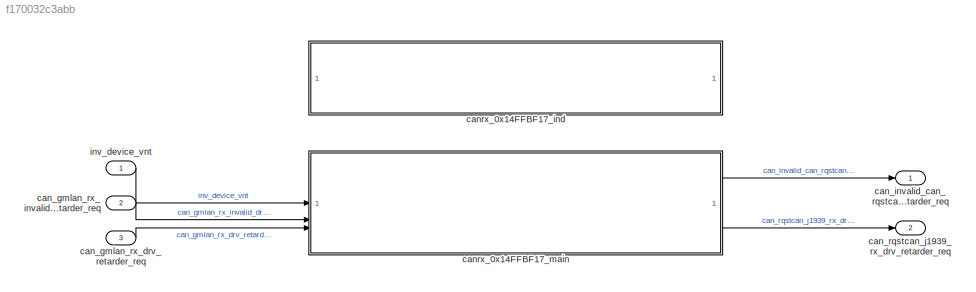
MODEL slx_f170032c3abb
KIND model
CONFIG AbsTol = auto
CONFIG EnableMultiTasking = off
CONFIG FixedStep = auto
CONFIG MaxStep = auto
CONFIG MinStep = auto
CONFIG RelTol = 1e-3
CONFIG SampleTimeConstraint = Unconstrained
CONFIG SolverName = VariableStepAuto
CONFIG StartTime = 0.0
CONFIG StopTime = 10.0
BLOCK [Inport] can_gmlan_rx_drv_retarder_req
  Port = 3
BLOCK [Inport] can_gmlan_rx_invalid_drv_retarder_req
  Port = 2
BLOCK [Outport] can_invalid_can_rqstcan_j1939_rx_drv_retarder_req
BLOCK [Outport] can_rqstcan_j1939_rx_drv_retarder_req
  Port = 2
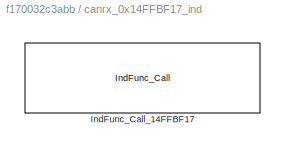
BLOCK [SubSystem] canrx_0x14FFBF17_ind
BLOCK [Reference] canrx_0x14FFBF17_ind/IndFunc_Call_14FFBF17  REF=user_lib/IndFunc_Call
  SourceBlock = user_lib/IndFunc_Call
  SourceProductName = User Defined for IFLayer
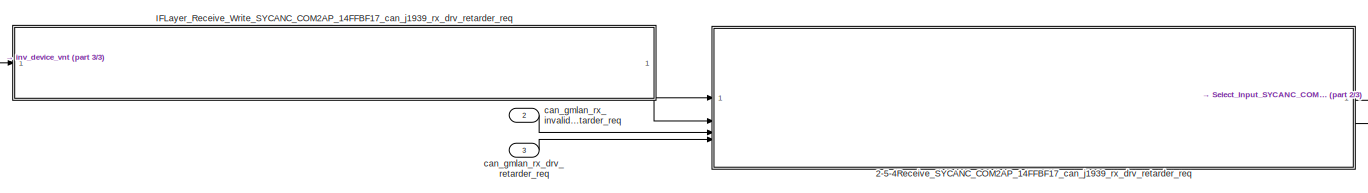
[diagram: canrx_0x14FFBF17_main - part 1/3, center side, full height]
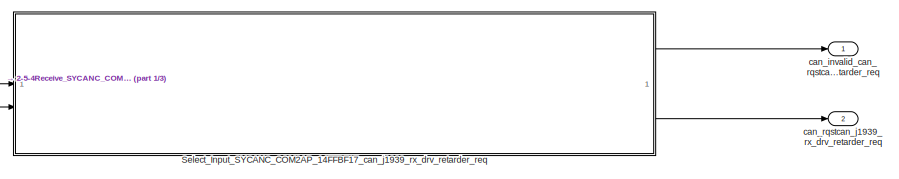
[diagram: canrx_0x14FFBF17_main - part 2/3, right side, full height]
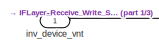
[diagram: canrx_0x14FFBF17_main - part 3/3, middle left region]
BLOCK [SubSystem] canrx_0x14FFBF17_main
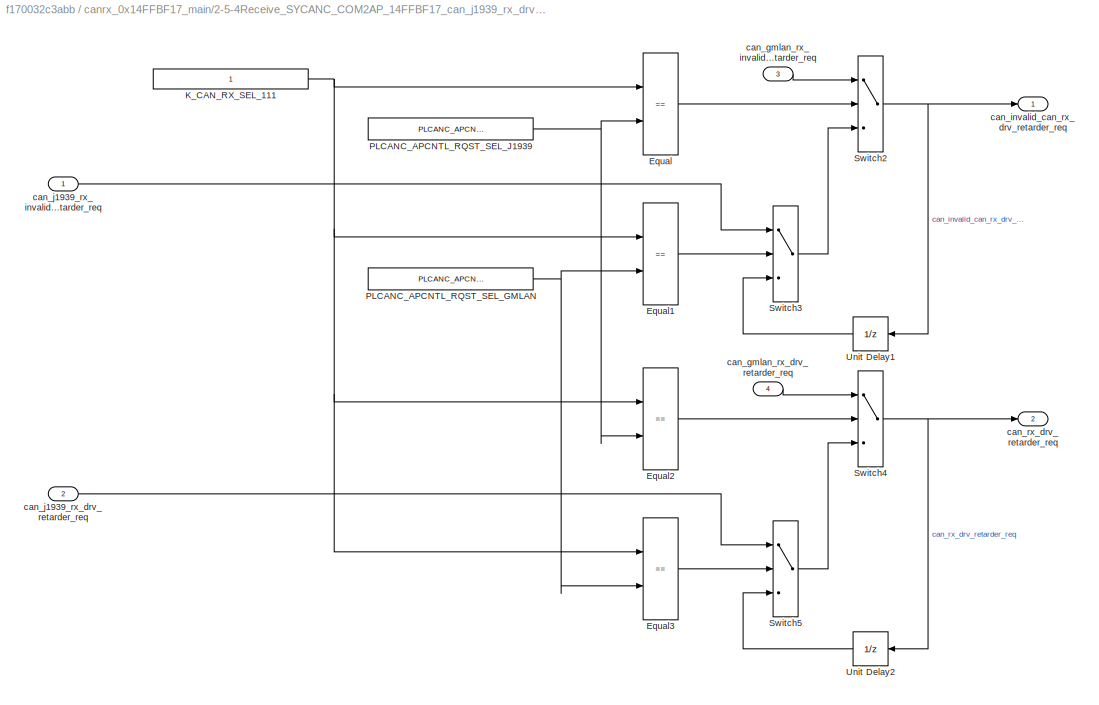
BLOCK [SubSystem] canrx_0x14FFBF17_main/2-5-4Receive_SYCANC_COM2AP_14FFBF17_can_j1939_rx_drv_retarder_req
  RTWSystemCode = Nonreusable function
  TreatAsAtomicUnit = on
BLOCK [RelationalOperator] canrx_0x14FFBF17_main/2-5-4Receive_SYCANC_COM2AP_14FFBF17_can_j1939_rx_drv_retarder_req/Equal
  InputSameDT = off
  Operator = ==
  OutDataTypeStr = boolean
  RndMeth = Simplest
BLOCK [RelationalOperator] canrx_0x14FFBF17_main/2-5-4Receive_SYCANC_COM2AP_14FFBF17_can_j1939_rx_drv_retarder_req/Equal1
  InputSameDT = off
  Operator = ==
  OutDataTypeStr = boolean
  RndMeth = Simplest
BLOCK [RelationalOperator] canrx_0x14FFBF17_main/2-5-4Receive_SYCANC_COM2AP_14FFBF17_can_j1939_rx_drv_retarder_req/Equal2
  InputSameDT = off
  Operator = ==
  OutDataTypeStr = boolean
  RndMeth = Simplest
BLOCK [RelationalOperator] canrx_0x14FFBF17_main/2-5-4Receive_SYCANC_COM2AP_14FFBF17_can_j1939_rx_drv_retarder_req/Equal3
  InputSameDT = off
  Operator = ==
  OutDataTypeStr = boolean
  RndMeth = Simplest
BLOCK [Constant] canrx_0x14FFBF17_main/2-5-4Receive_SYCANC_COM2AP_14FFBF17_can_j1939_rx_drv_retarder_req/K_CAN_RX_SEL_111
BLOCK [Constant] canrx_0x14FFBF17_main/2-5-4Receive_SYCANC_COM2AP_14FFBF17_can_j1939_rx_drv_retarder_req/PLCANC_APCNTL_RQST_SEL_GMLAN
  Value = PLCANC_APCNTL_RQST_SEL_GMLAN
BLOCK [Constant] canrx_0x14FFBF17_main/2-5-4Receive_SYCANC_COM2AP_14FFBF17_can_j1939_rx_drv_retarder_req/PLCANC_APCNTL_RQST_SEL_J1939
  Value = PLCANC_APCNTL_RQST_SEL_J1939
BLOCK [Switch] canrx_0x14FFBF17_main/2-5-4Receive_SYCANC_COM2AP_14FFBF17_can_j1939_rx_drv_retarder_req/Switch2
  Criteria = u2 > Threshold
  InputSameDT = off
  SaturateOnIntegerOverflow = off
BLOCK [Switch] canrx_0x14FFBF17_main/2-5-4Receive_SYCANC_COM2AP_14FFBF17_can_j1939_rx_drv_retarder_req/Switch3
  Criteria = u2 > Threshold
  InputSameDT = off
  SaturateOnIntegerOverflow = off
BLOCK [Switch] canrx_0x14FFBF17_main/2-5-4Receive_SYCANC_COM2AP_14FFBF17_can_j1939_rx_drv_retarder_req/Switch4
  Criteria = u2 > Threshold
  InputSameDT = off
  SaturateOnIntegerOverflow = off
BLOCK [Switch] canrx_0x14FFBF17_main/2-5-4Receive_SYCANC_COM2AP_14FFBF17_can_j1939_rx_drv_retarder_req/Switch5
  Criteria = u2 > Threshold
  InputSameDT = off
  SaturateOnIntegerOverflow = off
BLOCK [UnitDelay] canrx_0x14FFBF17_main/2-5-4Receive_SYCANC_COM2AP_14FFBF17_can_j1939_rx_drv_retarder_req/Unit Delay1
  HasFrameUpgradeWarning = on
  SampleTime = -1
BLOCK [UnitDelay] canrx_0x14FFBF17_main/2-5-4Receive_SYCANC_COM2AP_14FFBF17_can_j1939_rx_drv_retarder_req/Unit Delay2
  HasFrameUpgradeWarning = on
  SampleTime = -1
BLOCK [Inport] canrx_0x14FFBF17_main/2-5-4Receive_SYCANC_COM2AP_14FFBF17_can_j1939_rx_drv_retarder_req/can_gmlan_rx_drv_retarder_req
  Port = 4
BLOCK [Inport] canrx_0x14FFBF17_main/2-5-4Receive_SYCANC_COM2AP_14FFBF17_can_j1939_rx_drv_retarder_req/can_gmlan_rx_invalid_drv_retarder_req
  Port = 3
BLOCK [Outport] canrx_0x14FFBF17_main/2-5-4Receive_SYCANC_COM2AP_14FFBF17_can_j1939_rx_drv_retarder_req/can_invalid_can_rx_drv_retarder_req
BLOCK [Inport] canrx_0x14FFBF17_main/2-5-4Receive_SYCANC_COM2AP_14FFBF17_can_j1939_rx_drv_retarder_req/can_j1939_rx_drv_retarder_req
  Port = 2
BLOCK [Inport] canrx_0x14FFBF17_main/2-5-4Receive_SYCANC_COM2AP_14FFBF17_can_j1939_rx_drv_retarder_req/can_j1939_rx_invalid_drv_retarder_req
BLOCK [Outport] canrx_0x14FFBF17_main/2-5-4Receive_SYCANC_COM2AP_14FFBF17_can_j1939_rx_drv_retarder_req/can_rx_drv_retarder_req
  Port = 2
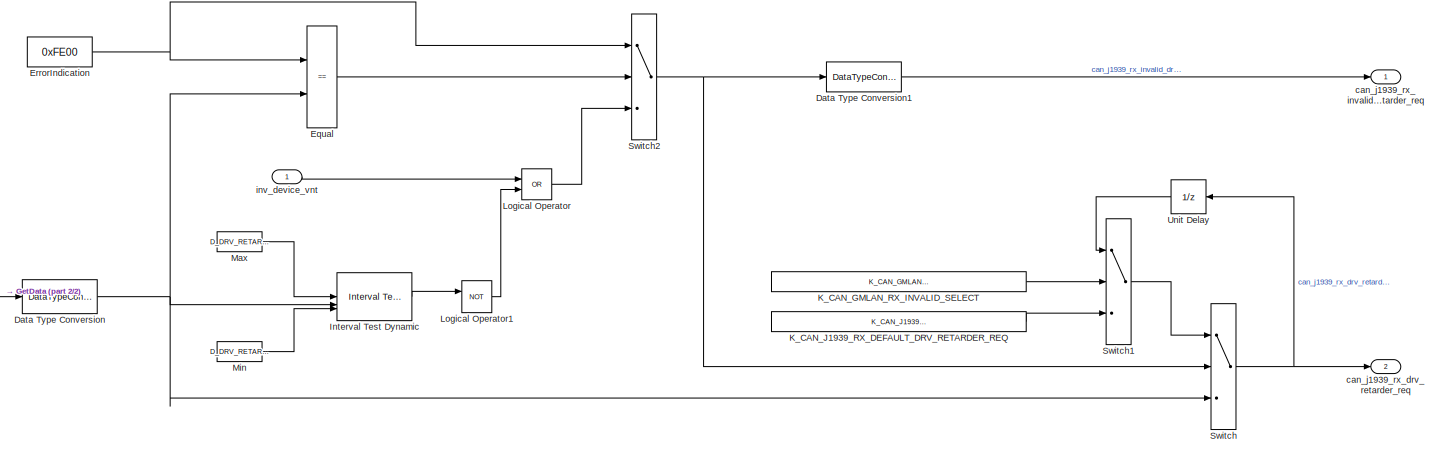
[diagram: canrx_0x14FFBF17_main/IFLayer_Receive_Write_SYCANC_COM2AP_14FFBF17_can_j1939_rx_drv_retarder_req - part 1/2, most of the canvas]
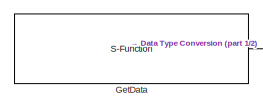
[diagram: canrx_0x14FFBF17_main/IFLayer_Receive_Write_SYCANC_COM2AP_14FFBF17_can_j1939_rx_drv_retarder_req - part 2/2, bottom left region]
BLOCK [SubSystem] canrx_0x14FFBF17_main/IFLayer_Receive_Write_SYCANC_COM2AP_14FFBF17_can_j1939_rx_drv_retarder_req
  RTWSystemCode = Nonreusable function
  TreatAsAtomicUnit = on
BLOCK [DataTypeConversion] canrx_0x14FFBF17_main/IFLayer_Receive_Write_SYCANC_COM2AP_14FFBF17_can_j1939_rx_drv_retarder_req/Data Type Conversion
  ConvertRealWorld = Stored Integer (SI)
  OutDataTypeStr = UB
  RndMeth = Floor
  SaturateOnIntegerOverflow = off
BLOCK [DataTypeConversion] canrx_0x14FFBF17_main/IFLayer_Receive_Write_SYCANC_COM2AP_14FFBF17_can_j1939_rx_drv_retarder_req/Data Type Conversion1
  ConvertRealWorld = Stored Integer (SI)
  RndMeth = Floor
  SaturateOnIntegerOverflow = off
BLOCK [RelationalOperator] canrx_0x14FFBF17_main/IFLayer_Receive_Write_SYCANC_COM2AP_14FFBF17_can_j1939_rx_drv_retarder_req/Equal
  InputSameDT = off
  Operator = ==
  OutDataTypeStr = boolean
  RndMeth = Simplest
BLOCK [Constant] canrx_0x14FFBF17_main/IFLayer_Receive_Write_SYCANC_COM2AP_14FFBF17_can_j1939_rx_drv_retarder_req/ErrorIndication
  OutDataTypeStr = Inherit: Inherit via back propagation
  Value = 0xFE00
BLOCK [S-Function] canrx_0x14FFBF17_main/IFLayer_Receive_Write_SYCANC_COM2AP_14FFBF17_can_j1939_rx_drv_retarder_req/GetData
  EnableBusSupport = off
  FunctionName = GetData
  Parameters = interface,signalType
  SFcnIsStateOwnerBlock = off
  SFunctionDeploymentMode = off
BLOCK [Reference] canrx_0x14FFBF17_main/IFLayer_Receive_Write_SYCANC_COM2AP_14FFBF17_can_j1939_rx_drv_retarder_req/Interval Test Dynamic  REF=simulink/Logic and Bit
Operations/Interval Test
Dynamic
  SourceBlock = simulink/Logic and Bit\nOperations/Interval Test\nDynamic
  SourceType = Interval Test Dynamic
BLOCK [Constant] canrx_0x14FFBF17_main/IFLayer_Receive_Write_SYCANC_COM2AP_14FFBF17_can_j1939_rx_drv_retarder_req/K_CAN_GMLAN_RX_INVALID_SELECT
  OutDataTypeStr = Inherit: Inherit via back propagation
  Value = K_CAN_GMLAN_RX_INVALID_SELECT
BLOCK [Constant] canrx_0x14FFBF17_main/IFLayer_Receive_Write_SYCANC_COM2AP_14FFBF17_can_j1939_rx_drv_retarder_req/K_CAN_J1939_RX_DEFAULT_DRV_RETARDER_REQ
  OutDataTypeStr = Inherit: Inherit via back propagation
  Value = K_CAN_J1939_RX_DEFAULT_DRV_RETARDER_REQ
BLOCK [Logic] canrx_0x14FFBF17_main/IFLayer_Receive_Write_SYCANC_COM2AP_14FFBF17_can_j1939_rx_drv_retarder_req/Logical Operator
  AllPortsSameDT = off
  Operator = OR
  OutDataTypeStr = boolean
BLOCK [Logic] canrx_0x14FFBF17_main/IFLayer_Receive_Write_SYCANC_COM2AP_14FFBF17_can_j1939_rx_drv_retarder_req/Logical Operator1
  AllPortsSameDT = off
  Operator = NOT
  OutDataTypeStr = boolean
BLOCK [Constant] canrx_0x14FFBF17_main/IFLayer_Receive_Write_SYCANC_COM2AP_14FFBF17_can_j1939_rx_drv_retarder_req/Max
  OutDataTypeStr = Inherit: Inherit via back propagation
  Value = D_DRV_RETARDER_REQ_MAX
BLOCK [Constant] canrx_0x14FFBF17_main/IFLayer_Receive_Write_SYCANC_COM2AP_14FFBF17_can_j1939_rx_drv_retarder_req/Min
  OutDataTypeStr = Inherit: Inherit via back propagation
  Value = D_DRV_RETARDER_REQ_MIN
BLOCK [Switch] canrx_0x14FFBF17_main/IFLayer_Receive_Write_SYCANC_COM2AP_14FFBF17_can_j1939_rx_drv_retarder_req/Switch
  Criteria = u2 > Threshold
  InputSameDT = off
  SaturateOnIntegerOverflow = off
BLOCK [Switch] canrx_0x14FFBF17_main/IFLayer_Receive_Write_SYCANC_COM2AP_14FFBF17_can_j1939_rx_drv_retarder_req/Switch1
  Criteria = u2 > Threshold
  InputSameDT = off
  SaturateOnIntegerOverflow = off
BLOCK [Switch] canrx_0x14FFBF17_main/IFLayer_Receive_Write_SYCANC_COM2AP_14FFBF17_can_j1939_rx_drv_retarder_req/Switch2
  Criteria = u2 > Threshold
  InputSameDT = off
  SaturateOnIntegerOverflow = off
BLOCK [UnitDelay] canrx_0x14FFBF17_main/IFLayer_Receive_Write_SYCANC_COM2AP_14FFBF17_can_j1939_rx_drv_retarder_req/Unit Delay
  HasFrameUpgradeWarning = on
  NameLocation = top
  SampleTime = -1
BLOCK [Outport] canrx_0x14FFBF17_main/IFLayer_Receive_Write_SYCANC_COM2AP_14FFBF17_can_j1939_rx_drv_retarder_req/can_j1939_rx_drv_retarder_req
  Port = 2
BLOCK [Outport] canrx_0x14FFBF17_main/IFLayer_Receive_Write_SYCANC_COM2AP_14FFBF17_can_j1939_rx_drv_retarder_req/can_j1939_rx_invalid_drv_retarder_req
BLOCK [Inport] canrx_0x14FFBF17_main/IFLayer_Receive_Write_SYCANC_COM2AP_14FFBF17_can_j1939_rx_drv_retarder_req/inv_device_vnt
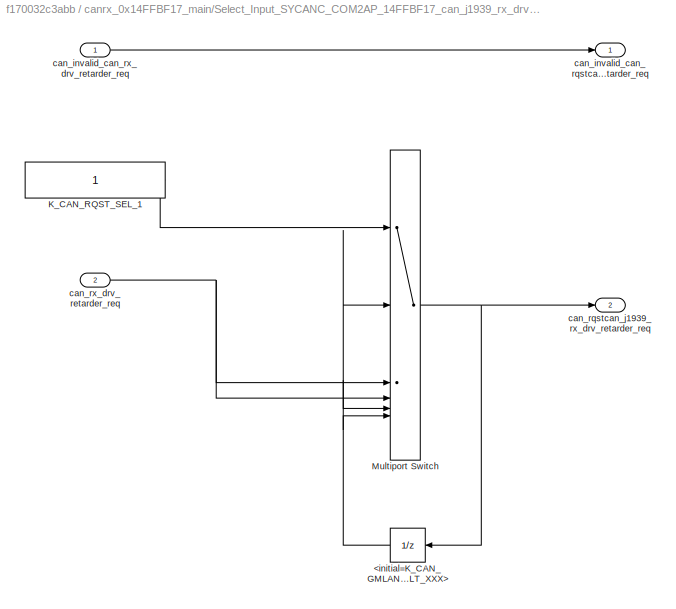
BLOCK [SubSystem] canrx_0x14FFBF17_main/Select_Input_SYCANC_COM2AP_14FFBF17_can_j1939_rx_drv_retarder_req
  RTWSystemCode = Nonreusable function
  TreatAsAtomicUnit = on
BLOCK [UnitDelay] canrx_0x14FFBF17_main/Select_Input_SYCANC_COM2AP_14FFBF17_can_j1939_rx_drv_retarder_req/<initial=K_CAN_GMLAN_RX_DEFAULT_XXX>
  HasFrameUpgradeWarning = on
  SampleTime = -1
BLOCK [Constant] canrx_0x14FFBF17_main/Select_Input_SYCANC_COM2AP_14FFBF17_can_j1939_rx_drv_retarder_req/K_CAN_RQST_SEL_1
BLOCK [MultiPortSwitch] canrx_0x14FFBF17_main/Select_Input_SYCANC_COM2AP_14FFBF17_can_j1939_rx_drv_retarder_req/Multiport Switch
  DataPortOrder = Zero-based contiguous
  InputSameDT = off
  Inputs = 5
  SaturateOnIntegerOverflow = off
  zeroidx = on
BLOCK [Outport] canrx_0x14FFBF17_main/Select_Input_SYCANC_COM2AP_14FFBF17_can_j1939_rx_drv_retarder_req/can_invalid_can_rqstcan_j1939_rx_drv_retarder_req
BLOCK [Inport] canrx_0x14FFBF17_main/Select_Input_SYCANC_COM2AP_14FFBF17_can_j1939_rx_drv_retarder_req/can_invalid_can_rx_drv_retarder_req
BLOCK [Outport] canrx_0x14FFBF17_main/Select_Input_SYCANC_COM2AP_14FFBF17_can_j1939_rx_drv_retarder_req/can_rqstcan_j1939_rx_drv_retarder_req
  Port = 2
BLOCK [Inport] canrx_0x14FFBF17_main/Select_Input_SYCANC_COM2AP_14FFBF17_can_j1939_rx_drv_retarder_req/can_rx_drv_retarder_req
  Port = 2
BLOCK [Inport] canrx_0x14FFBF17_main/can_gmlan_rx_drv_retarder_req
  Port = 3
BLOCK [Inport] canrx_0x14FFBF17_main/can_gmlan_rx_invalid_drv_retarder_req
  Port = 2
BLOCK [Outport] canrx_0x14FFBF17_main/can_invalid_can_rqstcan_j1939_rx_drv_retarder_req
BLOCK [Outport] canrx_0x14FFBF17_main/can_rqstcan_j1939_rx_drv_retarder_req
  Port = 2
BLOCK [Inport] canrx_0x14FFBF17_main/inv_device_vnt
BLOCK [Inport] inv_device_vnt
LINE can_gmlan_rx_drv_retarder_req:1 -> canrx_0x14FFBF17_main:3
LINE can_gmlan_rx_invalid_drv_retarder_req:1 -> canrx_0x14FFBF17_main:2
LINE canrx_0x14FFBF17_main/2-5-4Receive_SYCANC_COM2AP_14FFBF17_can_j1939_rx_drv_retarder_req/Equal1:1 -> canrx_0x14FFBF17_main/2-5-4Receive_SYCANC_COM2AP_14FFBF17_can_j1939_rx_drv_retarder_req/Switch3:2
LINE canrx_0x14FFBF17_main/2-5-4Receive_SYCANC_COM2AP_14FFBF17_can_j1939_rx_drv_retarder_req/Equal2:1 -> canrx_0x14FFBF17_main/2-5-4Receive_SYCANC_COM2AP_14FFBF17_can_j1939_rx_drv_retarder_req/Switch4:2
LINE canrx_0x14FFBF17_main/2-5-4Receive_SYCANC_COM2AP_14FFBF17_can_j1939_rx_drv_retarder_req/Equal3:1 -> canrx_0x14FFBF17_main/2-5-4Receive_SYCANC_COM2AP_14FFBF17_can_j1939_rx_drv_retarder_req/Switch5:2
LINE canrx_0x14FFBF17_main/2-5-4Receive_SYCANC_COM2AP_14FFBF17_can_j1939_rx_drv_retarder_req/Equal:1 -> canrx_0x14FFBF17_main/2-5-4Receive_SYCANC_COM2AP_14FFBF17_can_j1939_rx_drv_retarder_req/Switch2:2
NET canrx_0x14FFBF17_main/2-5-4Receive_SYCANC_COM2AP_14FFBF17_can_j1939_rx_drv_retarder_req/K_CAN_RX_SEL_111:1 -> canrx_0x14FFBF17_main/2-5-4Receive_SYCANC_COM2AP_14FFBF17_can_j1939_rx_drv_retarder_req/Equal1:1, canrx_0x14FFBF17_main/2-5-4Receive_SYCANC_COM2AP_14FFBF17_can_j1939_rx_drv_retarder_req/Equal2:1, canrx_0x14FFBF17_main/2-5-4Receive_SYCANC_COM2AP_14FFBF17_can_j1939_rx_drv_retarder_req/Equal3:1, canrx_0x14FFBF17_main/2-5-4Receive_SYCANC_COM2AP_14FFBF17_can_j1939_rx_drv_retarder_req/Equal:1
NET canrx_0x14FFBF17_main/2-5-4Receive_SYCANC_COM2AP_14FFBF17_can_j1939_rx_drv_retarder_req/PLCANC_APCNTL_RQST_SEL_GMLAN:1 -> canrx_0x14FFBF17_main/2-5-4Receive_SYCANC_COM2AP_14FFBF17_can_j1939_rx_drv_retarder_req/Equal1:2, canrx_0x14FFBF17_main/2-5-4Receive_SYCANC_COM2AP_14FFBF17_can_j1939_rx_drv_retarder_req/Equal3:2
NET canrx_0x14FFBF17_main/2-5-4Receive_SYCANC_COM2AP_14FFBF17_can_j1939_rx_drv_retarder_req/PLCANC_APCNTL_RQST_SEL_J1939:1 -> canrx_0x14FFBF17_main/2-5-4Receive_SYCANC_COM2AP_14FFBF17_can_j1939_rx_drv_retarder_req/Equal2:2, canrx_0x14FFBF17_main/2-5-4Receive_SYCANC_COM2AP_14FFBF17_can_j1939_rx_drv_retarder_req/Equal:2
NET canrx_0x14FFBF17_main/2-5-4Receive_SYCANC_COM2AP_14FFBF17_can_j1939_rx_drv_retarder_req/Switch2:1 -> canrx_0x14FFBF17_main/2-5-4Receive_SYCANC_COM2AP_14FFBF17_can_j1939_rx_drv_retarder_req/Unit Delay1:1, canrx_0x14FFBF17_main/2-5-4Receive_SYCANC_COM2AP_14FFBF17_can_j1939_rx_drv_retarder_req/can_invalid_can_rx_drv_retarder_req:1
LINE canrx_0x14FFBF17_main/2-5-4Receive_SYCANC_COM2AP_14FFBF17_can_j1939_rx_drv_retarder_req/Switch3:1 -> canrx_0x14FFBF17_main/2-5-4Receive_SYCANC_COM2AP_14FFBF17_can_j1939_rx_drv_retarder_req/Switch2:3
NET canrx_0x14FFBF17_main/2-5-4Receive_SYCANC_COM2AP_14FFBF17_can_j1939_rx_drv_retarder_req/Switch4:1 -> canrx_0x14FFBF17_main/2-5-4Receive_SYCANC_COM2AP_14FFBF17_can_j1939_rx_drv_retarder_req/Unit Delay2:1, canrx_0x14FFBF17_main/2-5-4Receive_SYCANC_COM2AP_14FFBF17_can_j1939_rx_drv_retarder_req/can_rx_drv_retarder_req:1
LINE canrx_0x14FFBF17_main/2-5-4Receive_SYCANC_COM2AP_14FFBF17_can_j1939_rx_drv_retarder_req/Switch5:1 -> canrx_0x14FFBF17_main/2-5-4Receive_SYCANC_COM2AP_14FFBF17_can_j1939_rx_drv_retarder_req/Switch4:3
LINE canrx_0x14FFBF17_main/2-5-4Receive_SYCANC_COM2AP_14FFBF17_can_j1939_rx_drv_retarder_req/Unit Delay1:1 -> canrx_0x14FFBF17_main/2-5-4Receive_SYCANC_COM2AP_14FFBF17_can_j1939_rx_drv_retarder_req/Switch3:3
LINE canrx_0x14FFBF17_main/2-5-4Receive_SYCANC_COM2AP_14FFBF17_can_j1939_rx_drv_retarder_req/Unit Delay2:1 -> canrx_0x14FFBF17_main/2-5-4Receive_SYCANC_COM2AP_14FFBF17_can_j1939_rx_drv_retarder_req/Switch5:3
LINE canrx_0x14FFBF17_main/2-5-4Receive_SYCANC_COM2AP_14FFBF17_can_j1939_rx_drv_retarder_req/can_gmlan_rx_drv_retarder_req:1 -> canrx_0x14FFBF17_main/2-5-4Receive_SYCANC_COM2AP_14FFBF17_can_j1939_rx_drv_retarder_req/Switch4:1
LINE canrx_0x14FFBF17_main/2-5-4Receive_SYCANC_COM2AP_14FFBF17_can_j1939_rx_drv_retarder_req/can_gmlan_rx_invalid_drv_retarder_req:1 -> canrx_0x14FFBF17_main/2-5-4Receive_SYCANC_COM2AP_14FFBF17_can_j1939_rx_drv_retarder_req/Switch2:1
LINE canrx_0x14FFBF17_main/2-5-4Receive_SYCANC_COM2AP_14FFBF17_can_j1939_rx_drv_retarder_req/can_j1939_rx_drv_retarder_req:1 -> canrx_0x14FFBF17_main/2-5-4Receive_SYCANC_COM2AP_14FFBF17_can_j1939_rx_drv_retarder_req/Switch5:1
LINE canrx_0x14FFBF17_main/2-5-4Receive_SYCANC_COM2AP_14FFBF17_can_j1939_rx_drv_retarder_req/can_j1939_rx_invalid_drv_retarder_req:1 -> canrx_0x14FFBF17_main/2-5-4Receive_SYCANC_COM2AP_14FFBF17_can_j1939_rx_drv_retarder_req/Switch3:1
LINE canrx_0x14FFBF17_main/2-5-4Receive_SYCANC_COM2AP_14FFBF17_can_j1939_rx_drv_retarder_req:1 -> canrx_0x14FFBF17_main/Select_Input_SYCANC_COM2AP_14FFBF17_can_j1939_rx_drv_retarder_req:1
LINE canrx_0x14FFBF17_main/2-5-4Receive_SYCANC_COM2AP_14FFBF17_can_j1939_rx_drv_retarder_req:2 -> canrx_0x14FFBF17_main/Select_Input_SYCANC_COM2AP_14FFBF17_can_j1939_rx_drv_retarder_req:2
LINE canrx_0x14FFBF17_main/IFLayer_Receive_Write_SYCANC_COM2AP_14FFBF17_can_j1939_rx_drv_retarder_req/Data Type Conversion1:1 -> canrx_0x14FFBF17_main/IFLayer_Receive_Write_SYCANC_COM2AP_14FFBF17_can_j1939_rx_drv_retarder_req/can_j1939_rx_invalid_drv_retarder_req:1
NET canrx_0x14FFBF17_main/IFLayer_Receive_Write_SYCANC_COM2AP_14FFBF17_can_j1939_rx_drv_retarder_req/Data Type Conversion:1 -> canrx_0x14FFBF17_main/IFLayer_Receive_Write_SYCANC_COM2AP_14FFBF17_can_j1939_rx_drv_retarder_req/Equal:2, canrx_0x14FFBF17_main/IFLayer_Receive_Write_SYCANC_COM2AP_14FFBF17_can_j1939_rx_drv_retarder_req/Interval Test Dynamic:2, canrx_0x14FFBF17_main/IFLayer_Receive_Write_SYCANC_COM2AP_14FFBF17_can_j1939_rx_drv_retarder_req/Switch:3
LINE canrx_0x14FFBF17_main/IFLayer_Receive_Write_SYCANC_COM2AP_14FFBF17_can_j1939_rx_drv_retarder_req/Equal:1 -> canrx_0x14FFBF17_main/IFLayer_Receive_Write_SYCANC_COM2AP_14FFBF17_can_j1939_rx_drv_retarder_req/Switch2:2
NET canrx_0x14FFBF17_main/IFLayer_Receive_Write_SYCANC_COM2AP_14FFBF17_can_j1939_rx_drv_retarder_req/ErrorIndication:1 -> canrx_0x14FFBF17_main/IFLayer_Receive_Write_SYCANC_COM2AP_14FFBF17_can_j1939_rx_drv_retarder_req/Equal:1, canrx_0x14FFBF17_main/IFLayer_Receive_Write_SYCANC_COM2AP_14FFBF17_can_j1939_rx_drv_retarder_req/Switch2:1
LINE canrx_0x14FFBF17_main/IFLayer_Receive_Write_SYCANC_COM2AP_14FFBF17_can_j1939_rx_drv_retarder_req/GetData:1 -> canrx_0x14FFBF17_main/IFLayer_Receive_Write_SYCANC_COM2AP_14FFBF17_can_j1939_rx_drv_retarder_req/Data Type Conversion:1
LINE canrx_0x14FFBF17_main/IFLayer_Receive_Write_SYCANC_COM2AP_14FFBF17_can_j1939_rx_drv_retarder_req/Interval Test Dynamic:1 -> canrx_0x14FFBF17_main/IFLayer_Receive_Write_SYCANC_COM2AP_14FFBF17_can_j1939_rx_drv_retarder_req/Logical Operator1:1
LINE canrx_0x14FFBF17_main/IFLayer_Receive_Write_SYCANC_COM2AP_14FFBF17_can_j1939_rx_drv_retarder_req/K_CAN_GMLAN_RX_INVALID_SELECT:1 -> canrx_0x14FFBF17_main/IFLayer_Receive_Write_SYCANC_COM2AP_14FFBF17_can_j1939_rx_drv_retarder_req/Switch1:2
LINE canrx_0x14FFBF17_main/IFLayer_Receive_Write_SYCANC_COM2AP_14FFBF17_can_j1939_rx_drv_retarder_req/K_CAN_J1939_RX_DEFAULT_DRV_RETARDER_REQ:1 -> canrx_0x14FFBF17_main/IFLayer_Receive_Write_SYCANC_COM2AP_14FFBF17_can_j1939_rx_drv_retarder_req/Switch1:3
LINE canrx_0x14FFBF17_main/IFLayer_Receive_Write_SYCANC_COM2AP_14FFBF17_can_j1939_rx_drv_retarder_req/Logical Operator1:1 -> canrx_0x14FFBF17_main/IFLayer_Receive_Write_SYCANC_COM2AP_14FFBF17_can_j1939_rx_drv_retarder_req/Logical Operator:2
LINE canrx_0x14FFBF17_main/IFLayer_Receive_Write_SYCANC_COM2AP_14FFBF17_can_j1939_rx_drv_retarder_req/Logical Operator:1 -> canrx_0x14FFBF17_main/IFLayer_Receive_Write_SYCANC_COM2AP_14FFBF17_can_j1939_rx_drv_retarder_req/Switch2:3
LINE canrx_0x14FFBF17_main/IFLayer_Receive_Write_SYCANC_COM2AP_14FFBF17_can_j1939_rx_drv_retarder_req/Max:1 -> canrx_0x14FFBF17_main/IFLayer_Receive_Write_SYCANC_COM2AP_14FFBF17_can_j1939_rx_drv_retarder_req/Interval Test Dynamic:1
LINE canrx_0x14FFBF17_main/IFLayer_Receive_Write_SYCANC_COM2AP_14FFBF17_can_j1939_rx_drv_retarder_req/Min:1 -> canrx_0x14FFBF17_main/IFLayer_Receive_Write_SYCANC_COM2AP_14FFBF17_can_j1939_rx_drv_retarder_req/Interval Test Dynamic:3
LINE canrx_0x14FFBF17_main/IFLayer_Receive_Write_SYCANC_COM2AP_14FFBF17_can_j1939_rx_drv_retarder_req/Switch1:1 -> canrx_0x14FFBF17_main/IFLayer_Receive_Write_SYCANC_COM2AP_14FFBF17_can_j1939_rx_drv_retarder_req/Switch:1
NET canrx_0x14FFBF17_main/IFLayer_Receive_Write_SYCANC_COM2AP_14FFBF17_can_j1939_rx_drv_retarder_req/Switch2:1 -> canrx_0x14FFBF17_main/IFLayer_Receive_Write_SYCANC_COM2AP_14FFBF17_can_j1939_rx_drv_retarder_req/Data Type Conversion1:1, canrx_0x14FFBF17_main/IFLayer_Receive_Write_SYCANC_COM2AP_14FFBF17_can_j1939_rx_drv_retarder_req/Switch:2
NET canrx_0x14FFBF17_main/IFLayer_Receive_Write_SYCANC_COM2AP_14FFBF17_can_j1939_rx_drv_retarder_req/Switch:1 -> canrx_0x14FFBF17_main/IFLayer_Receive_Write_SYCANC_COM2AP_14FFBF17_can_j1939_rx_drv_retarder_req/Unit Delay:1, canrx_0x14FFBF17_main/IFLayer_Receive_Write_SYCANC_COM2AP_14FFBF17_can_j1939_rx_drv_retarder_req/can_j1939_rx_drv_retarder_req:1
LINE canrx_0x14FFBF17_main/IFLayer_Receive_Write_SYCANC_COM2AP_14FFBF17_can_j1939_rx_drv_retarder_req/Unit Delay:1 -> canrx_0x14FFBF17_main/IFLayer_Receive_Write_SYCANC_COM2AP_14FFBF17_can_j1939_rx_drv_retarder_req/Switch1:1
LINE canrx_0x14FFBF17_main/IFLayer_Receive_Write_SYCANC_COM2AP_14FFBF17_can_j1939_rx_drv_retarder_req/inv_device_vnt:1 -> canrx_0x14FFBF17_main/IFLayer_Receive_Write_SYCANC_COM2AP_14FFBF17_can_j1939_rx_drv_retarder_req/Logical Operator:1
LINE canrx_0x14FFBF17_main/IFLayer_Receive_Write_SYCANC_COM2AP_14FFBF17_can_j1939_rx_drv_retarder_req:1 -> canrx_0x14FFBF17_main/2-5-4Receive_SYCANC_COM2AP_14FFBF17_can_j1939_rx_drv_retarder_req:1
LINE canrx_0x14FFBF17_main/IFLayer_Receive_Write_SYCANC_COM2AP_14FFBF17_can_j1939_rx_drv_retarder_req:2 -> canrx_0x14FFBF17_main/2-5-4Receive_SYCANC_COM2AP_14FFBF17_can_j1939_rx_drv_retarder_req:2
NET canrx_0x14FFBF17_main/Select_Input_SYCANC_COM2AP_14FFBF17_can_j1939_rx_drv_retarder_req/<initial=K_CAN_GMLAN_RX_DEFAULT_XXX>:1 -> canrx_0x14FFBF17_main/Select_Input_SYCANC_COM2AP_14FFBF17_can_j1939_rx_drv_retarder_req/Multiport Switch:2, canrx_0x14FFBF17_main/Select_Input_SYCANC_COM2AP_14FFBF17_can_j1939_rx_drv_retarder_req/Multiport Switch:5, canrx_0x14FFBF17_main/Select_Input_SYCANC_COM2AP_14FFBF17_can_j1939_rx_drv_retarder_req/Multiport Switch:6
LINE canrx_0x14FFBF17_main/Select_Input_SYCANC_COM2AP_14FFBF17_can_j1939_rx_drv_retarder_req/K_CAN_RQST_SEL_1:1 -> canrx_0x14FFBF17_main/Select_Input_SYCANC_COM2AP_14FFBF17_can_j1939_rx_drv_retarder_req/Multiport Switch:1
NET canrx_0x14FFBF17_main/Select_Input_SYCANC_COM2AP_14FFBF17_can_j1939_rx_drv_retarder_req/Multiport Switch:1 -> canrx_0x14FFBF17_main/Select_Input_SYCANC_COM2AP_14FFBF17_can_j1939_rx_drv_retarder_req/<initial=K_CAN_GMLAN_RX_DEFAULT_XXX>:1, canrx_0x14FFBF17_main/Select_Input_SYCANC_COM2AP_14FFBF17_can_j1939_rx_drv_retarder_req/can_rqstcan_j1939_rx_drv_retarder_req:1
LINE canrx_0x14FFBF17_main/Select_Input_SYCANC_COM2AP_14FFBF17_can_j1939_rx_drv_retarder_req/can_invalid_can_rx_drv_retarder_req:1 -> canrx_0x14FFBF17_main/Select_Input_SYCANC_COM2AP_14FFBF17_can_j1939_rx_drv_retarder_req/can_invalid_can_rqstcan_j1939_rx_drv_retarder_req:1
NET canrx_0x14FFBF17_main/Select_Input_SYCANC_COM2AP_14FFBF17_can_j1939_rx_drv_retarder_req/can_rx_drv_retarder_req:1 -> canrx_0x14FFBF17_main/Select_Input_SYCANC_COM2AP_14FFBF17_can_j1939_rx_drv_retarder_req/Multiport Switch:3, canrx_0x14FFBF17_main/Select_Input_SYCANC_COM2AP_14FFBF17_can_j1939_rx_drv_retarder_req/Multiport Switch:4
LINE canrx_0x14FFBF17_main/Select_Input_SYCANC_COM2AP_14FFBF17_can_j1939_rx_drv_retarder_req:1 -> canrx_0x14FFBF17_main/can_invalid_can_rqstcan_j1939_rx_drv_retarder_req:1
LINE canrx_0x14FFBF17_main/Select_Input_SYCANC_COM2AP_14FFBF17_can_j1939_rx_drv_retarder_req:2 -> canrx_0x14FFBF17_main/can_rqstcan_j1939_rx_drv_retarder_req:1
LINE canrx_0x14FFBF17_main/can_gmlan_rx_drv_retarder_req:1 -> canrx_0x14FFBF17_main/2-5-4Receive_SYCANC_COM2AP_14FFBF17_can_j1939_rx_drv_retarder_req:4
LINE canrx_0x14FFBF17_main/can_gmlan_rx_invalid_drv_retarder_req:1 -> canrx_0x14FFBF17_main/2-5-4Receive_SYCANC_COM2AP_14FFBF17_can_j1939_rx_drv_retarder_req:3
LINE canrx_0x14FFBF17_main/inv_device_vnt:1 -> canrx_0x14FFBF17_main/IFLayer_Receive_Write_SYCANC_COM2AP_14FFBF17_can_j1939_rx_drv_retarder_req:1
LINE canrx_0x14FFBF17_main:1 -> can_invalid_can_rqstcan_j1939_rx_drv_retarder_req:1
LINE canrx_0x14FFBF17_main:2 -> can_rqstcan_j1939_rx_drv_retarder_req:1
LINE inv_device_vnt:1 -> canrx_0x14FFBF17_main:1
note: NET lines group one-source signal fan-out (src -> all destinations, sorted); 1:1 wires keep LINE
